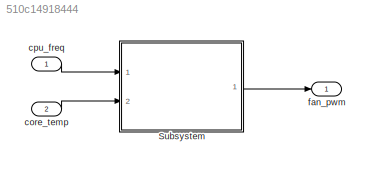
MODEL slx_510c14918444
KIND model
CONFIG AbsTol = auto
CONFIG EnableMultiTasking = off
CONFIG FixedStep = auto
CONFIG MaxStep = auto
CONFIG MinStep = auto
CONFIG RelTol = 1e-3
CONFIG SampleTimeConstraint = Unconstrained
CONFIG Solver = VariableStepAuto
CONFIG SolverName = VariableStepAuto
CONFIG StartTime = 0.0
CONFIG StopTime = 10.0
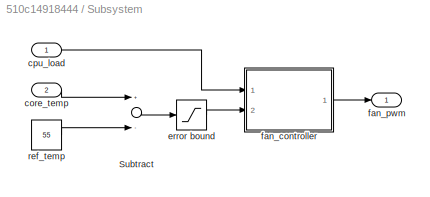
BLOCK [SubSystem] Subsystem
  Ports = [2, 1]
  RequestExecContextInheritance = off
BLOCK [Sum] Subsystem/Subtract
  InputSameDT = off
  Inputs = +-
  OutDataTypeStr = Inherit: Inherit via internal rule
  Ports = [2, 1]
  SaturateOnIntegerOverflow = off
BLOCK [Inport] Subsystem/core_temp
  IconDisplay = Port number
  Port = 2
BLOCK [Inport] Subsystem/cpu_load
  IconDisplay = Port number
BLOCK [Saturate] Subsystem/error bound
  InputPortMap = u0
  LowerLimit = 0
  Ports = [1, 1]
  UpperLimit = 80
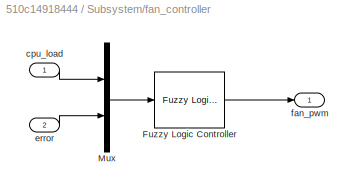
BLOCK [SubSystem] Subsystem/fan_controller 
  Ports = [2, 1]
  RequestExecContextInheritance = off
BLOCK [Reference] Subsystem/fan_controller /Fuzzy Logic Controller  REF=fuzblock/Fuzzy Logic   (lib defined in mdl_858b3b3e7478)
Controller
  Ports = [1, 1]
  SourceBlock = fuzblock/Fuzzy Logic \nController
  SourceProductBaseCode = FL
  SourceProductName = Fuzzy Logic Toolbox
  SourceType = Fuzzy Inference System
BLOCK [Mux] Subsystem/fan_controller /Mux
  DisplayOption = bar
  Inputs = 2
  Ports = [2, 1]
BLOCK [Inport] Subsystem/fan_controller /cpu_load 
  IconDisplay = Port number
BLOCK [Inport] Subsystem/fan_controller /error 
  IconDisplay = Port number
  Port = 2
BLOCK [Outport] Subsystem/fan_controller /fan_pwm 
  IconDisplay = Port number
BLOCK [Outport] Subsystem/fan_pwm
  IconDisplay = Port number
BLOCK [Constant] Subsystem/ref_temp
  Value = 55
BLOCK [Inport] core_temp
  IconDisplay = Port number
  Port = 2
BLOCK [Inport] cpu_freq
  IconDisplay = Port number
BLOCK [Outport] fan_pwm
  IconDisplay = Port number
LINE Subsystem/Subtract:1 -> Subsystem/error bound:1
LINE Subsystem/core_temp:1 -> Subsystem/Subtract:1
LINE Subsystem/cpu_load:1 -> Subsystem/fan_controller :1
LINE Subsystem/error bound:1 -> Subsystem/fan_controller :2
LINE Subsystem/fan_controller /Fuzzy Logic Controller:1 -> Subsystem/fan_controller /fan_pwm :1
LINE Subsystem/fan_controller /Mux:1 -> Subsystem/fan_controller /Fuzzy Logic Controller:1
LINE Subsystem/fan_controller /cpu_load :1 -> Subsystem/fan_controller /Mux:1
LINE Subsystem/fan_controller /error :1 -> Subsystem/fan_controller /Mux:2
LINE Subsystem/fan_controller :1 -> Subsystem/fan_pwm:1
LINE Subsystem/ref_temp:1 -> Subsystem/Subtract:2
LINE Subsystem:1 -> fan_pwm:1
LINE core_temp:1 -> Subsystem:2
LINE cpu_freq:1 -> Subsystem:1
